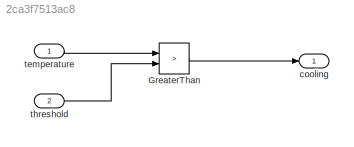
MODEL slx_2ca3f7513ac8
KIND model
CONFIG AbsTol = auto
CONFIG EnableMultiTasking = off
CONFIG FixedStep = auto
CONFIG MaxStep = auto
CONFIG MinStep = auto
CONFIG RelTol = 1e-3
CONFIG SampleTimeConstraint = Unconstrained
CONFIG Solver = FixedStepAuto
CONFIG SolverName = FixedStepAuto
CONFIG StartTime = 0.0
CONFIG StopTime = 100
BLOCK [RelationalOperator] GreaterThan
  InputSameDT = off
  Operator = >
  OutDataTypeStr = boolean
  Ports = [2, 1]
  RndMeth = Simplest
BLOCK [Outport] cooling
  IconDisplay = Port number
  OutDataTypeStr = boolean
BLOCK [Inport] temperature
  IconDisplay = Port number
  OutDataTypeStr = double
BLOCK [Inport] threshold
  IconDisplay = Port number
  OutDataTypeStr = double
  Port = 2
LINE GreaterThan:1 -> cooling:1
LINE temperature:1 -> GreaterThan:1
LINE threshold:1 -> GreaterThan:2
